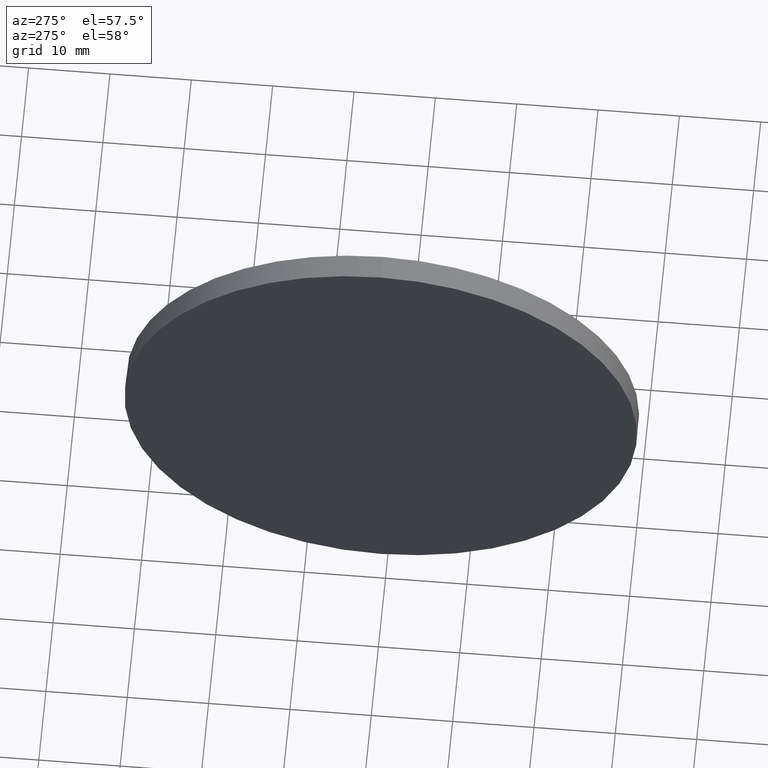
[diagram: clean part render]
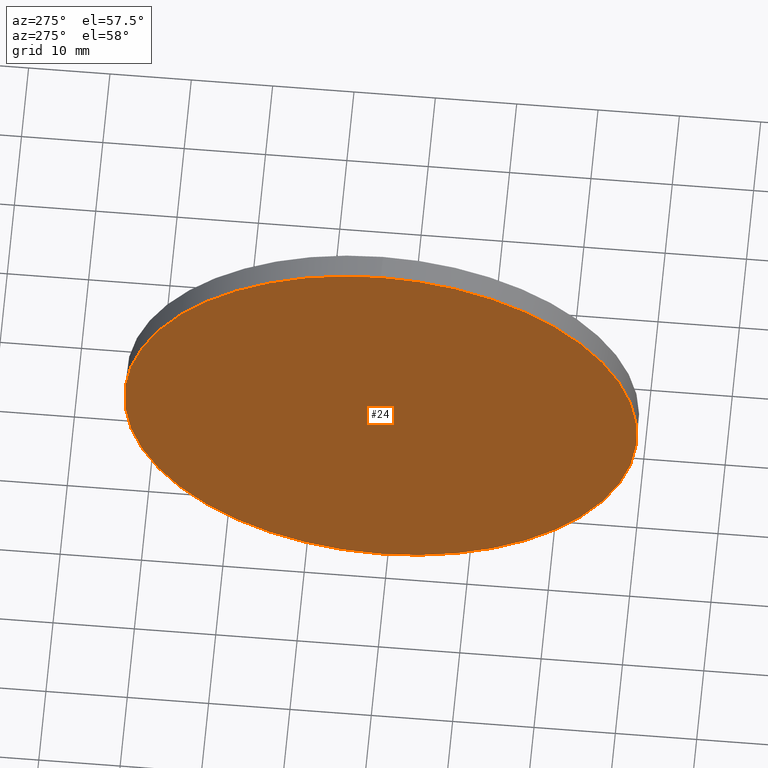
[diagram: same view with one face highlighted and labeled with its STEP entity id]
A machine part, auxiliary view. The second image highlights one B-rep face of the part: STEP entity #24.
In plain terms, the highlighted planar face has unit normal (1, 0, 0).
Its self-contained STEP definition (entity closure, byte-faithful):
#10 = CIRCLE ( 'NONE', #157, 31.50000000000000000 ) ;
#13 = CARTESIAN_POINT ( 'NONE',  ( 452.6110172033103300, 80.82132108647019200, 0.0000000000000000000 ) ) ;
#14 = DIRECTION ( 'NONE',  ( -1.000000000000000000, -0.0000000000000000000, -0.0000000000000000000 ) ) ;
#16 = VERTEX_POINT ( 'NONE', #31 ) ;
#20 = CARTESIAN_POINT ( 'NONE',  ( 452.6110172033103300, 80.82132108647019200, 0.0000000000000000000 ) ) ;
#24 = ADVANCED_FACE ( 'NONE', ( #176 ), #178, .F. ) ;
#31 = CARTESIAN_POINT ( 'NONE',  ( 452.6110172033103300, 80.82132108647019200, 31.50000000000000000 ) ) ;
#35 = DIRECTION ( 'NONE',  ( -1.000000000000000000, -0.0000000000000000000, -0.0000000000000000000 ) ) ;
#37 = CARTESIAN_POINT ( 'NONE',  ( 452.6110172033103300, 80.82132108647019200, -31.50000000000000000 ) ) ;
#39 = AXIS2_PLACEMENT_3D ( 'NONE', #142, #106, #62 ) ;
#40 = EDGE_LOOP ( 'NONE', ( #170, #129 ) ) ;
#41 = CIRCLE ( 'NONE', #90, 31.50000000000000000 ) ;
#56 = EDGE_CURVE ( 'NONE', #16, #139, #41, .T. ) ;
#62 = DIRECTION ( 'NONE',  ( 0.0000000000000000000, 0.0000000000000000000, -1.000000000000000000 ) ) ;
#90 = AXIS2_PLACEMENT_3D ( 'NONE', #20, #35, #166 ) ;
#106 = DIRECTION ( 'NONE',  ( 1.000000000000000000, 0.0000000000000000000, 0.0000000000000000000 ) ) ;
#113 = DIRECTION ( 'NONE',  ( 0.0000000000000000000, 0.0000000000000000000, 1.000000000000000000 ) ) ;
#121 = EDGE_CURVE ( 'NONE', #139, #16, #10, .T. ) ;
#129 = ORIENTED_EDGE ( 'NONE', *, *, #121, .T. ) ;
#139 = VERTEX_POINT ( 'NONE', #37 ) ;
#142 = CARTESIAN_POINT ( 'NONE',  ( 452.6110172033103300, 80.82132108647019200, 0.0000000000000000000 ) ) ;
#157 = AXIS2_PLACEMENT_3D ( 'NONE', #13, #14, #113 ) ;
#166 = DIRECTION ( 'NONE',  ( 0.0000000000000000000, 0.0000000000000000000, 1.000000000000000000 ) ) ;
#170 = ORIENTED_EDGE ( 'NONE', *, *, #56, .T. ) ;
#176 = FACE_OUTER_BOUND ( 'NONE', #40, .T. ) ;
#178 = PLANE ( 'NONE',  #39 ) ;